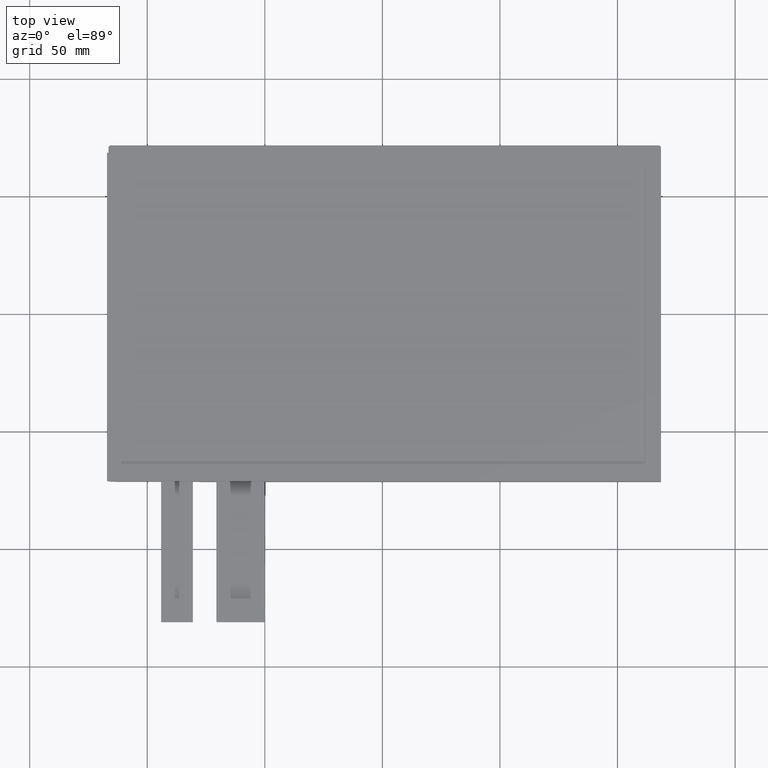
[diagram: clean part render]
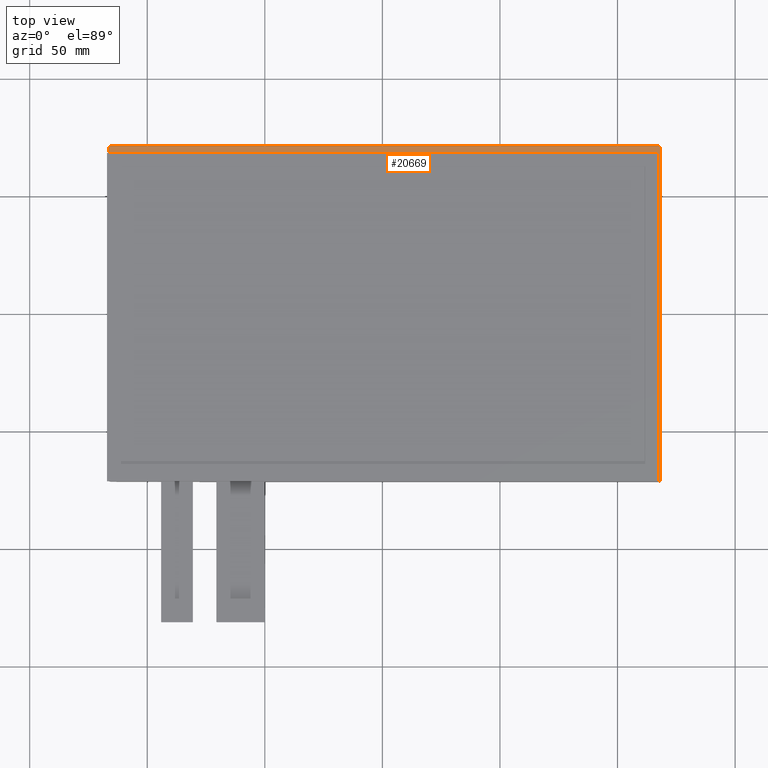
[diagram: same view with one face highlighted and labeled with its STEP entity id]
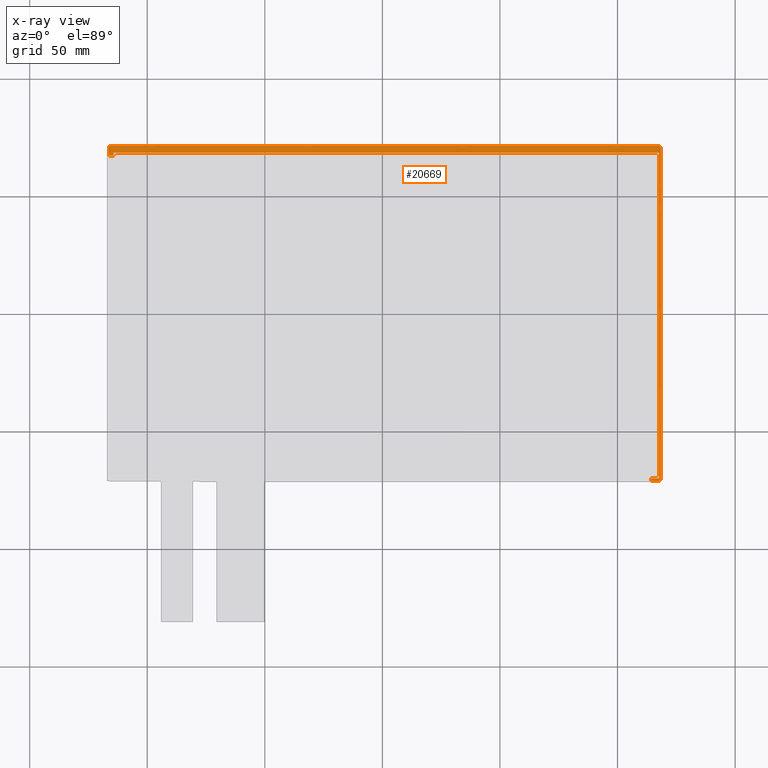
[diagram: x-ray of the same camera — body ghosted, the highlighted face saturated]
A machine part, top view. The second image highlights one B-rep face of the part: STEP entity #20669.
The next image is the same camera in x-ray: the body ghosted, the highlighted face saturated — about 0% of this face is hidden behind the body in this view.
In plain terms, the highlighted planar face has unit normal (0, -0, 1).
Its self-contained STEP definition (entity closure, byte-faithful):
#35=B_SPLINE_CURVE_WITH_KNOTS('',3,(#28723,#28724,#28725,#28726,#28727,
#28728,#28729,#28730),.UNSPECIFIED.,.F.,.F.,(4,1,1,1,1,4),(0.,0.2,0.4,0.6,
0.8,1.),.UNSPECIFIED.);
#36=B_SPLINE_CURVE_WITH_KNOTS('',3,(#28734,#28735,#28736,#28737,#28738,
#28739,#28740,#28741),.UNSPECIFIED.,.F.,.F.,(4,1,1,1,1,4),(0.,0.2,0.4,0.6,
0.8,1.),.UNSPECIFIED.);
#37=B_SPLINE_CURVE_WITH_KNOTS('',3,(#28745,#28746,#28747,#28748,#28749,
#28750,#28751,#28752),.UNSPECIFIED.,.F.,.F.,(4,1,1,1,1,4),(0.,0.2,0.4,0.6,
0.8,1.),.UNSPECIFIED.);
#508=FACE_OUTER_BOUND('',#1599,.T.);
#1599=EDGE_LOOP('',(#13668,#13669,#13670,#13671,#13672,#13673,#13674,#13675,
#13676,#13677,#13678,#13679,#13680));
#2804=LINE('',#28692,#5638);
#2816=LINE('',#28717,#5650);
#2817=LINE('',#28719,#5651);
#2818=LINE('',#28721,#5652);
#2819=LINE('',#28732,#5653);
#2820=LINE('',#28743,#5654);
#2821=LINE('',#28754,#5655);
#2822=LINE('',#28756,#5656);
#2823=LINE('',#28758,#5657);
#2824=LINE('',#28759,#5658);
#5638=VECTOR('',#23210,10.);
#5650=VECTOR('',#23230,10.);
#5651=VECTOR('',#23231,10.);
#5652=VECTOR('',#23232,10.);
#5653=VECTOR('',#23233,10.);
#5654=VECTOR('',#23234,10.);
#5655=VECTOR('',#23235,10.);
#5656=VECTOR('',#23236,10.);
#5657=VECTOR('',#23237,10.);
#5658=VECTOR('',#23238,10.);
#8456=VERTEX_POINT('',#28689);
#8457=VERTEX_POINT('',#28691);
#8466=VERTEX_POINT('',#28716);
#8467=VERTEX_POINT('',#28718);
#8468=VERTEX_POINT('',#28720);
#8469=VERTEX_POINT('',#28722);
#8470=VERTEX_POINT('',#28731);
#8471=VERTEX_POINT('',#28733);
#8472=VERTEX_POINT('',#28742);
#8473=VERTEX_POINT('',#28744);
#8474=VERTEX_POINT('',#28753);
#8475=VERTEX_POINT('',#28755);
#8476=VERTEX_POINT('',#28757);
#10512=EDGE_CURVE('',#8457,#8456,#2804,.T.);
#10524=EDGE_CURVE('',#8466,#8457,#2816,.T.);
#10525=EDGE_CURVE('',#8456,#8467,#2817,.T.);
#10526=EDGE_CURVE('',#8467,#8468,#2818,.T.);
#10527=EDGE_CURVE('',#8468,#8469,#35,.T.);
#10528=EDGE_CURVE('',#8469,#8470,#2819,.T.);
#10529=EDGE_CURVE('',#8470,#8471,#36,.T.);
#10530=EDGE_CURVE('',#8471,#8472,#2820,.T.);
#10531=EDGE_CURVE('',#8472,#8473,#37,.T.);
#10532=EDGE_CURVE('',#8473,#8474,#2821,.T.);
#10533=EDGE_CURVE('',#8474,#8475,#2822,.T.);
#10534=EDGE_CURVE('',#8475,#8476,#2823,.T.);
#10535=EDGE_CURVE('',#8476,#8466,#2824,.T.);
#13668=ORIENTED_EDGE('',*,*,#10524,.T.);
#13669=ORIENTED_EDGE('',*,*,#10512,.T.);
#13670=ORIENTED_EDGE('',*,*,#10525,.T.);
#13671=ORIENTED_EDGE('',*,*,#10526,.T.);
#13672=ORIENTED_EDGE('',*,*,#10527,.T.);
#13673=ORIENTED_EDGE('',*,*,#10528,.T.);
#13674=ORIENTED_EDGE('',*,*,#10529,.T.);
#13675=ORIENTED_EDGE('',*,*,#10530,.T.);
#13676=ORIENTED_EDGE('',*,*,#10531,.T.);
#13677=ORIENTED_EDGE('',*,*,#10532,.T.);
#13678=ORIENTED_EDGE('',*,*,#10533,.T.);
#13679=ORIENTED_EDGE('',*,*,#10534,.T.);
#13680=ORIENTED_EDGE('',*,*,#10535,.T.);
#19702=PLANE('',#21789);
#20669=ADVANCED_FACE('',(#508),#19702,.T.);
#21789=AXIS2_PLACEMENT_3D('',#28715,#23228,#23229);
#23210=DIRECTION('',(-1.,4.984837574646E-16,5.57384943346501E-35));
#23228=DIRECTION('center_axis',(5.57384943346501E-35,-5.55694681827113E-50,
1.));
#23229=DIRECTION('ref_axis',(1.,-4.984837574646E-16,-5.57384943346501E-35));
#23230=DIRECTION('',(-4.984837574646E-16,-1.,-2.77847340913557E-50));
#23231=DIRECTION('',(-4.984837574646E-16,-1.,-2.77847340913557E-50));
#23232=DIRECTION('',(1.,2.95394816813207E-14,-5.57384943346501E-35));
#23233=DIRECTION('',(7.14267745789072E-14,1.,-3.92565140202604E-48));
#23234=DIRECTION('',(-1.,7.78043135923081E-14,5.57384943346501E-35));
#23235=DIRECTION('',(7.05557898185454E-14,-1.,-3.98824295926047E-48));
#23236=DIRECTION('',(1.,-2.45214129971985E-16,-5.57384943346501E-35));
#23237=DIRECTION('',(4.984837574646E-16,1.,2.77847340913557E-50));
#23238=DIRECTION('',(1.,-4.984837574646E-16,-5.57384943346501E-35));
#28689=CARTESIAN_POINT('',(114.17,-69.98,-3.54999999999999));
#28691=CARTESIAN_POINT('',(117.67,-69.98,-3.54999999999999));
#28692=CARTESIAN_POINT('',(59.3344392612075,-69.98,-3.54999999999999));
#28715=CARTESIAN_POINT('Origin',(0.998878522414926,-80.3663381149245,-3.54999999999999));
#28716=CARTESIAN_POINT('',(117.67,68.5199999999999,-3.55));
#28717=CARTESIAN_POINT('',(117.67,-5.92316905746229,-3.54999999999999));
#28718=CARTESIAN_POINT('',(114.17,-71.0999999999866,-3.54999999999999));
#28719=CARTESIAN_POINT('',(114.17,-72.7731690574623,-3.54999999999999));
#28720=CARTESIAN_POINT('',(117.5,-71.0999999999835,-3.54999999999999));
#28721=CARTESIAN_POINT('',(-115.5,-71.0999999999934,-3.54999999999999));
#28722=CARTESIAN_POINT('',(118.25,-70.3499999999935,-3.54999999999999));
#28723=CARTESIAN_POINT('Ctrl Pts',(117.5,-71.0999999999795,-3.54999999999999));
#28724=CARTESIAN_POINT('Ctrl Pts',(117.57820212871,-71.0999999999795,-3.54999999999999));
#28725=CARTESIAN_POINT('Ctrl Pts',(117.73568190346,-71.0751453818825,-3.54999999999999));
#28726=CARTESIAN_POINT('Ctrl Pts',(117.948124832068,-70.9668305377013,-3.54999999999999));
#28727=CARTESIAN_POINT('Ctrl Pts',(118.116830541372,-70.7981248256277,-3.54999999999999));
#28728=CARTESIAN_POINT('Ctrl Pts',(118.22514538084,-70.5856819053395,-3.54999999999999));
#28729=CARTESIAN_POINT('Ctrl Pts',(118.25,-70.4282021287095,-3.54999999999999));
#28730=CARTESIAN_POINT('Ctrl Pts',(118.25,-70.3499999999935,-3.54999999999999));
#28731=CARTESIAN_POINT('',(118.25,70.6500000000065,-3.54999999999999));
#28732=CARTESIAN_POINT('',(118.25,-70.3499999999935,-3.54999999999999));
#28733=CARTESIAN_POINT('',(117.5,71.4000000000065,-3.54999999999999));
#28734=CARTESIAN_POINT('Ctrl Pts',(118.24999999999,70.6500000000065,-3.54999999999999));
#28735=CARTESIAN_POINT('Ctrl Pts',(118.24999999999,70.7282021287115,-3.54999999999999));
#28736=CARTESIAN_POINT('Ctrl Pts',(118.22514538189,70.8856819034675,-3.54999999999999));
#28737=CARTESIAN_POINT('Ctrl Pts',(118.11683053771,71.0981248320767,-3.54999999999999));
#28738=CARTESIAN_POINT('Ctrl Pts',(117.94812482563,71.2668305413723,-3.54999999999999));
#28739=CARTESIAN_POINT('Ctrl Pts',(117.73568190535,71.3751453808475,-3.54999999999999));
#28740=CARTESIAN_POINT('Ctrl Pts',(117.57820212872,71.4000000000065,-3.54999999999999));
#28741=CARTESIAN_POINT('Ctrl Pts',(117.5,71.4000000000065,-3.54999999999999));
#28742=CARTESIAN_POINT('',(-115.5,71.4000000000316,-3.54999999999999));
#28743=CARTESIAN_POINT('',(117.5,71.4000000000065,-3.54999999999999));
#28744=CARTESIAN_POINT('',(-116.25,70.6500000000066,-3.54999999999999));
#28745=CARTESIAN_POINT('Ctrl Pts',(-115.5,71.4000000000396,-3.54999999999999));
#28746=CARTESIAN_POINT('Ctrl Pts',(-115.57820212871,71.4000000000396,-3.54999999999999));
#28747=CARTESIAN_POINT('Ctrl Pts',(-115.73568190347,71.3751453819376,-3.54999999999999));
#28748=CARTESIAN_POINT('Ctrl Pts',(-115.948124832078,71.2668305377432,-3.54999999999999));
#28749=CARTESIAN_POINT('Ctrl Pts',(-116.116830541362,71.098124825656,-3.54999999999999));
#28750=CARTESIAN_POINT('Ctrl Pts',(-116.22514538084,70.8856819053586,-3.54999999999999));
#28751=CARTESIAN_POINT('Ctrl Pts',(-116.25,70.7282021287246,-3.54999999999999));
#28752=CARTESIAN_POINT('Ctrl Pts',(-116.25,70.6500000000066,-3.54999999999999));
#28753=CARTESIAN_POINT('',(-116.25,67.3199999999997,-3.54999999999999));
#28754=CARTESIAN_POINT('',(-116.25,70.6500000000066,-3.54999999999999));
#28755=CARTESIAN_POINT('',(-114.33,67.3199999999997,-3.54999999999999));
#28756=CARTESIAN_POINT('',(-57.6655607387923,67.3199999999996,-3.54999999999999));
#28757=CARTESIAN_POINT('',(-114.33,68.5200000000001,-3.55));
#28758=CARTESIAN_POINT('',(-114.33,-7.67316905746218,-3.54999999999999));
#28759=CARTESIAN_POINT('',(-56.6655607387924,68.52,-3.54999999999999));